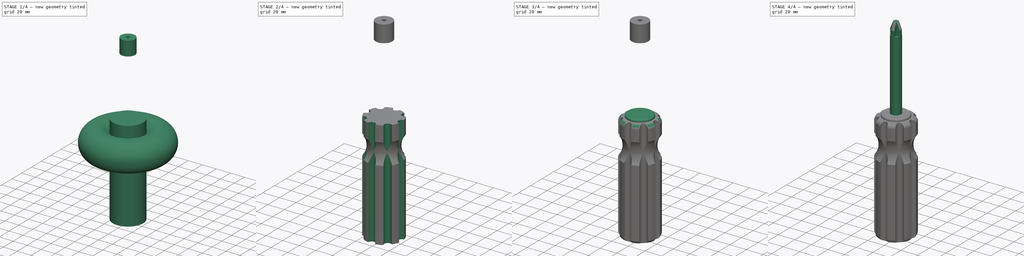
[diagram: build sequence overview — one tinted view per stage of 4, left to right]
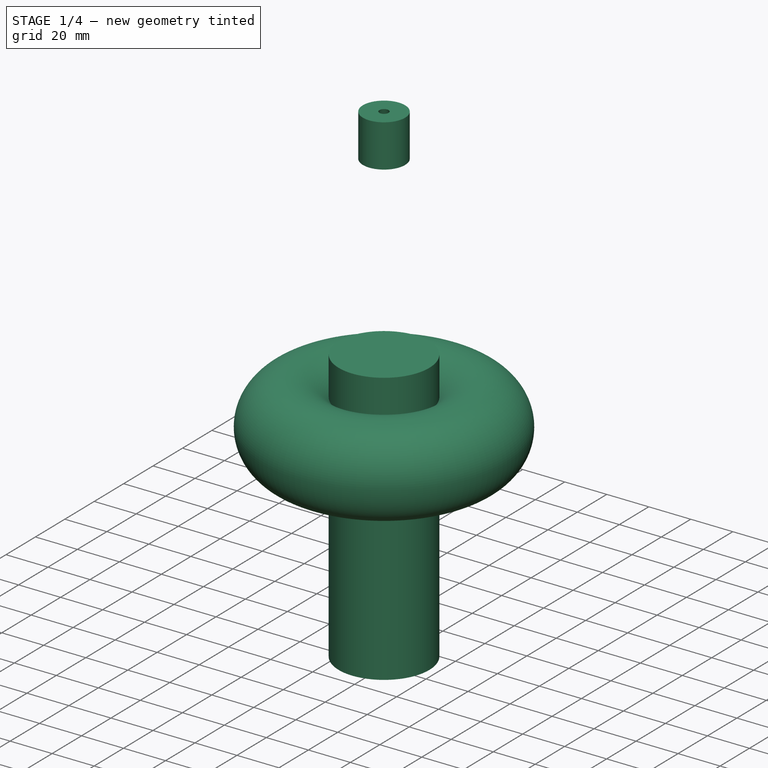
[diagram: stage 1 of 4 — iso view after this stage's code; geometry added in this stage tinted green]
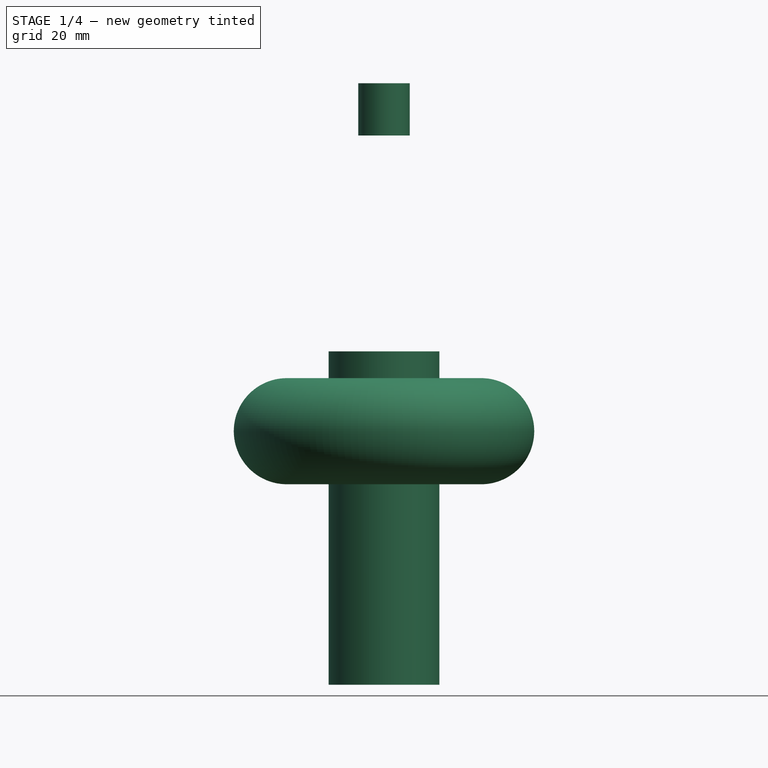
[diagram: stage 1 of 4 — front view after this stage's code; geometry added in this stage tinted green]
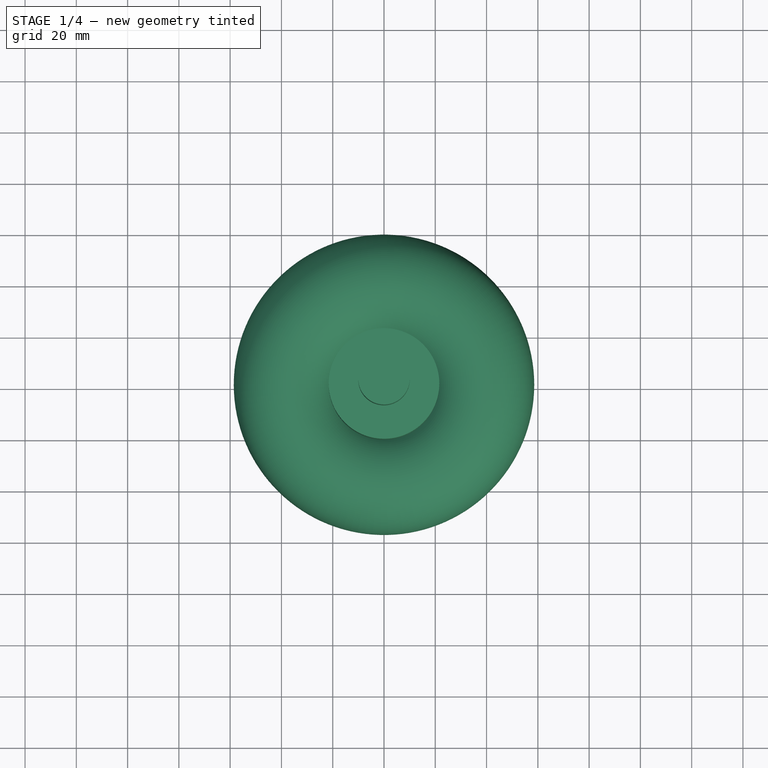
[diagram: stage 1 of 4 — top view after this stage's code; geometry added in this stage tinted green]
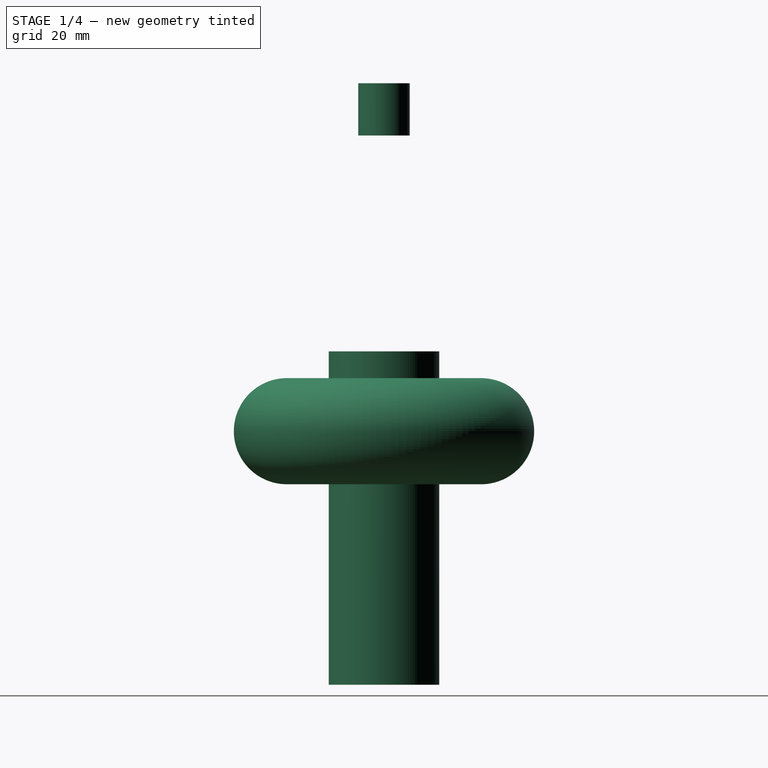
[diagram: stage 1 of 4 — right view after this stage's code; geometry added in this stage tinted green]
FCSTD DOCUMENT  (FreeCAD 0.16R)
Label: destornillador
License: All rights reserved
LicenseURL: http://en.wikipedia.org/wiki/All_rights_reserved
objects: Sketcher::SketchObject×7, PartDesign::Pad×3, PartDesign::Fillet×3, PartDesign::Revolution×2, Part::Cut×2, PartDesign::Pocket×2, PartDesign::PolarPattern×1
note: 27 computed .brp shape members not serialized (recipe doc carries the construction recipe); baked Part::Feature solids carry a one-line shape summary decoded from their .brp

FEATURE [Sketcher::SketchObject] Sketch
  sketch-geometry (1):
    g0: Circle CenterX=0 CenterY=0 CenterZ=0 NormalX=0 NormalY=0 NormalZ=1 Radius=21.5785
  constraints (1):
    c: Coincident(g0,g-1)
FEATURE [PartDesign::Pad] Pad
  Length = 130
  Length2 = 100
  Midplane = true
  Sketch = -> Sketch
  Type = 0
FEATURE [Sketcher::SketchObject] Sketch001
  Placement = pos=(0,0,0) rot=(-1,0,0;4.71239rad)
  sketch-geometry (1):
    g0: Circle CenterX=37.892 CenterY=33.868 CenterZ=0 NormalX=0 NormalY=0 NormalZ=1 Radius=20.6954
FEATURE [PartDesign::Revolution] Revolution
  Angle = 360
  Axis = (0,0,1)
  Base = (0,0,0)
  Placement = pos=(0,0,0) rot=(-1,0,0;4.71239rad)
  ReferenceAxis = -> Sketch001 [V_Axis]
  Reversed = true
  Sketch = -> Sketch001
FEATURE [Sketcher::SketchObject] Sketch006
  Placement = pos=(0,0,0) rot=(-1,0,0;4.71239rad)
  sketch-geometry (3):
    g0: LineSegment StartX=2.2004 StartY=169.554 StartZ=0 EndX=10.0354 EndY=149.213 EndZ=0
    g1: LineSegment StartX=10.0354 StartY=149.213 StartZ=0 EndX=10.0354 EndY=169.554 EndZ=0
    g2: LineSegment StartX=10.0354 StartY=169.554 StartZ=0 EndX=2.2004 EndY=169.554 EndZ=0
  constraints (5):
    c: Coincident(g0,g1)
    c: Vertical(g1)
    c: Coincident(g1,g2)
    c: Coincident(g2,g0)
    c: Horizontal(g2)
FEATURE [PartDesign::Revolution] Revolution001
  Angle = 360
  Axis = (0,0,1)
  Base = (0,0,0)
  Placement = pos=(0,0,0) rot=(-1,0,0;4.71239rad)
  ReferenceAxis = -> Sketch006 [V_Axis]
  Reversed = true
  Sketch = -> Sketch006
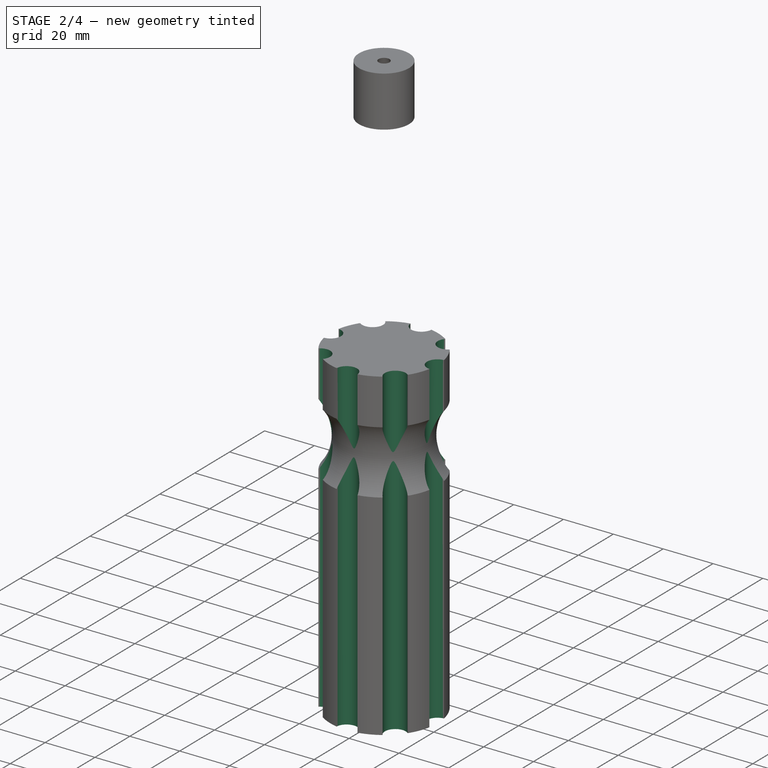
[diagram: stage 2 of 4 — iso view after this stage's code; geometry added in this stage tinted green]
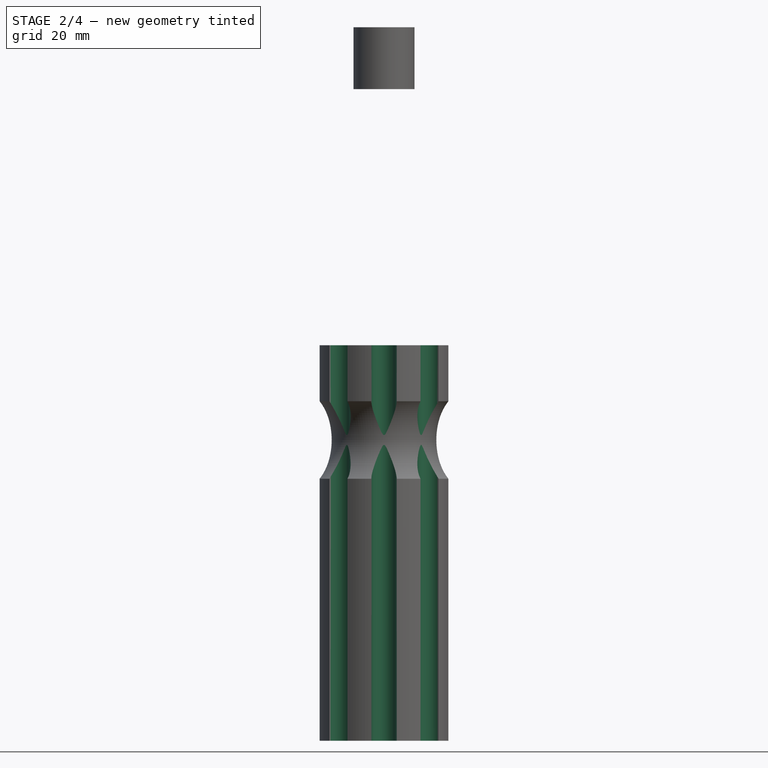
[diagram: stage 2 of 4 — front view after this stage's code; geometry added in this stage tinted green]
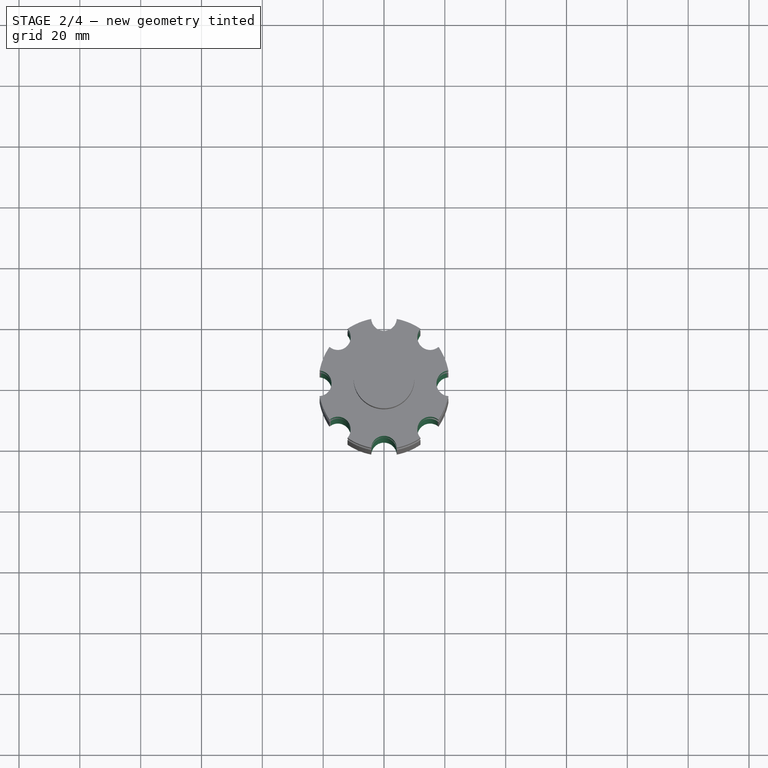
[diagram: stage 2 of 4 — top view after this stage's code; geometry added in this stage tinted green]
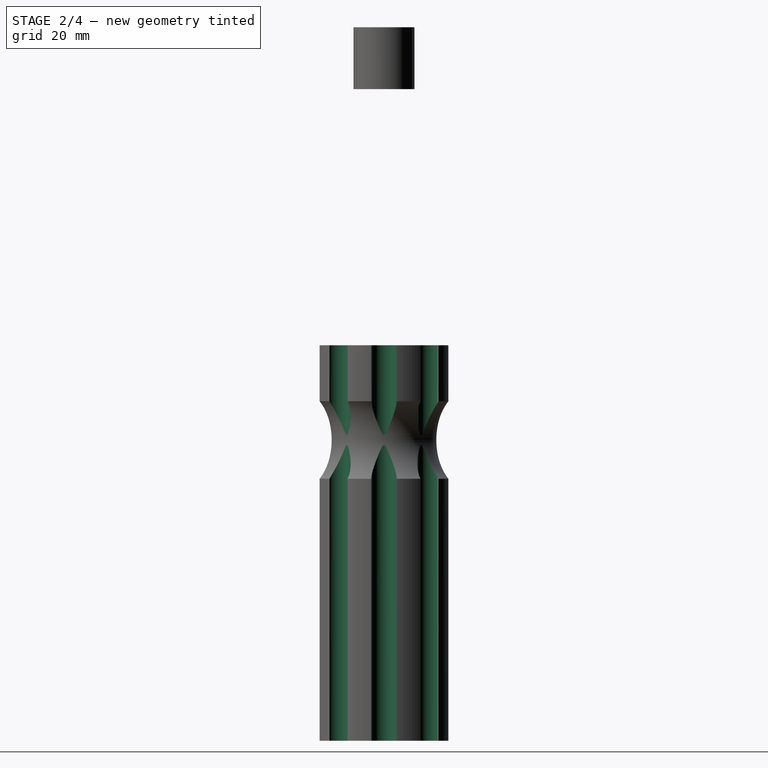
[diagram: stage 2 of 4 — right view after this stage's code; geometry added in this stage tinted green]
FEATURE [Part::Cut] Cut
  Base = -> Pad
  Tool = -> Revolution
FEATURE [Sketcher::SketchObject] Sketch002
  Placement = pos=(0,0,65) rot=(0,0,1;0rad)
  Support = -> Cut [Face5]
  sketch-geometry (1):
    g0: Circle CenterX=-3e-06 CenterY=21.4609 CenterZ=0 NormalX=0 NormalY=0 NormalZ=1 Radius=4.20165
FEATURE [PartDesign::Pocket] Pocket
  Length = 5
  Sketch = -> Sketch002
  Type = 1
FEATURE [PartDesign::PolarPattern] PolarPattern
  Angle = 360
  Axis = -> Sketch002 [N_Axis]
  Occurrences = 8
  Originals = -> [Pocket]
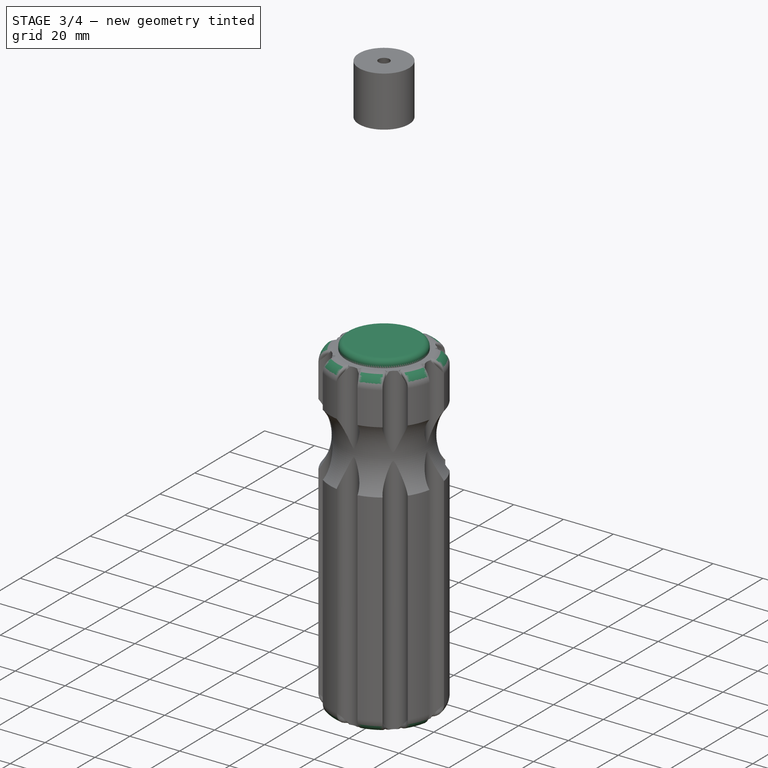
[diagram: stage 3 of 4 — iso view after this stage's code; geometry added in this stage tinted green]
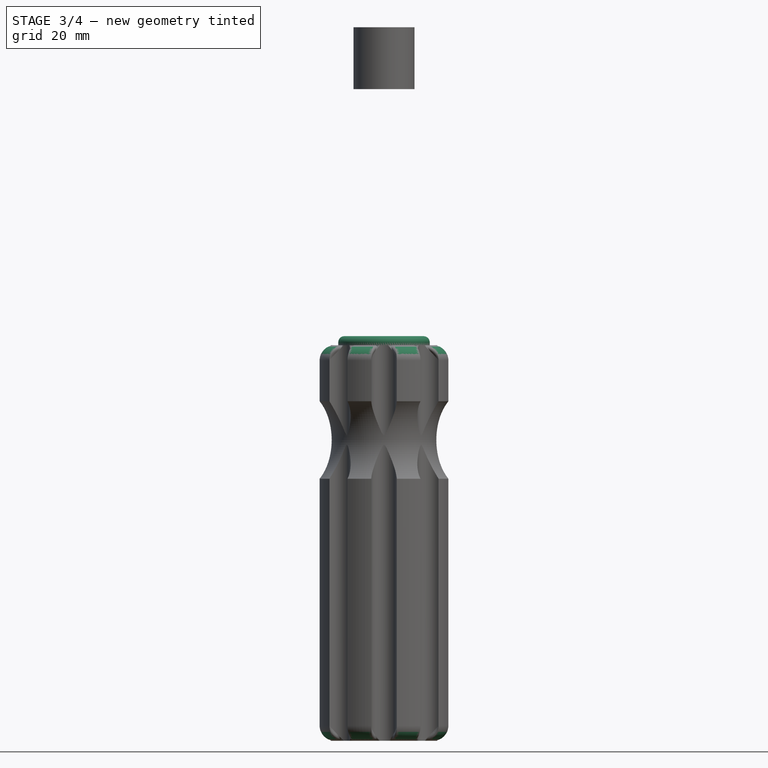
[diagram: stage 3 of 4 — front view after this stage's code; geometry added in this stage tinted green]
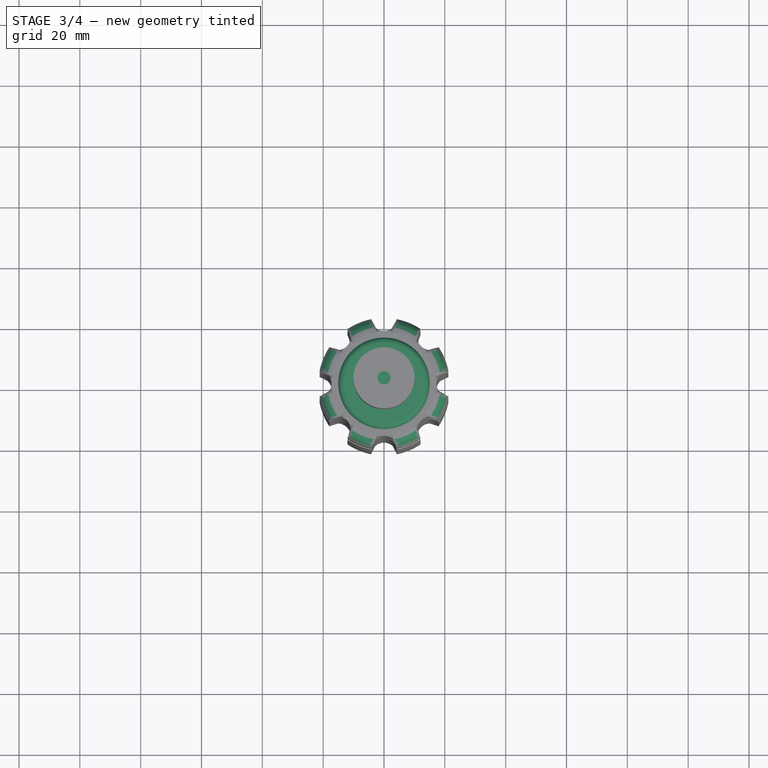
[diagram: stage 3 of 4 — top view after this stage's code; geometry added in this stage tinted green]
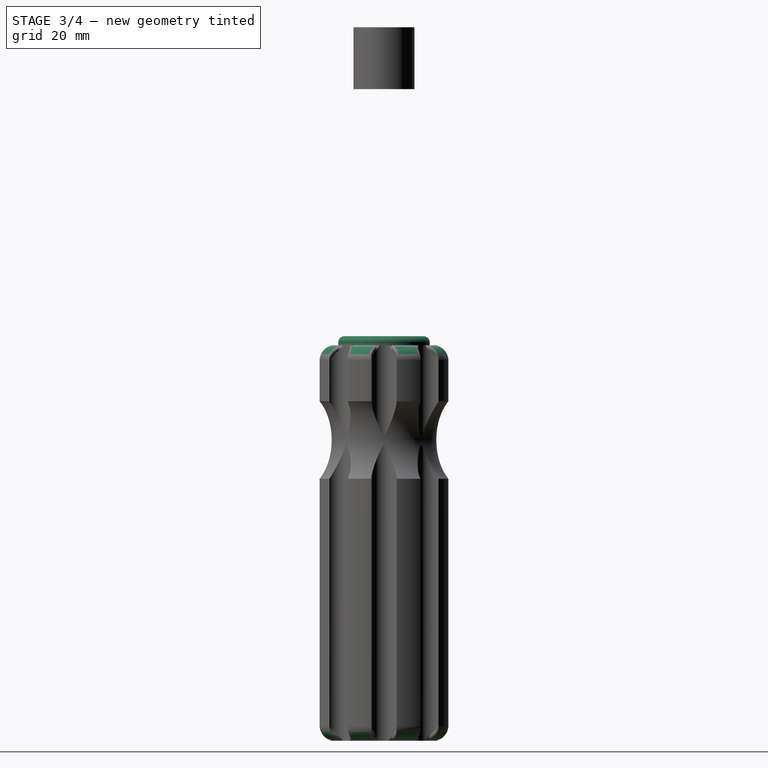
[diagram: stage 3 of 4 — right view after this stage's code; geometry added in this stage tinted green]
FEATURE [Sketcher::SketchObject] Sketch003
  Placement = pos=(0,0,65) rot=(0,0,1;0rad)
  Support = -> PolarPattern [Face34]
  sketch-geometry (1):
    g0: Circle CenterX=0 CenterY=0 CenterZ=0 NormalX=0 NormalY=0 NormalZ=1 Radius=15.03
  constraints (1):
    c: Coincident(g0,g-1)
FEATURE [PartDesign::Pad] Pad001
  Length = 3
  Length2 = 100
  Sketch = -> Sketch003
  Type = 0
FEATURE [PartDesign::Fillet] Fillet
  Base = -> Pad001 [Edge1]
  Radius = 3
FEATURE [PartDesign::Fillet] Fillet001
  Base = -> Fillet [Edge13,Edge9,Edge6,Edge10,Edge14,Edge18,Edge21,Edge17]
  Radius = 5
FEATURE [PartDesign::Fillet] Fillet002
  Base = -> Fillet001 [Edge157,Edge153,Edge149,Edge145,Edge141,Edge137,Edge133,Edge160]
  Radius = 5
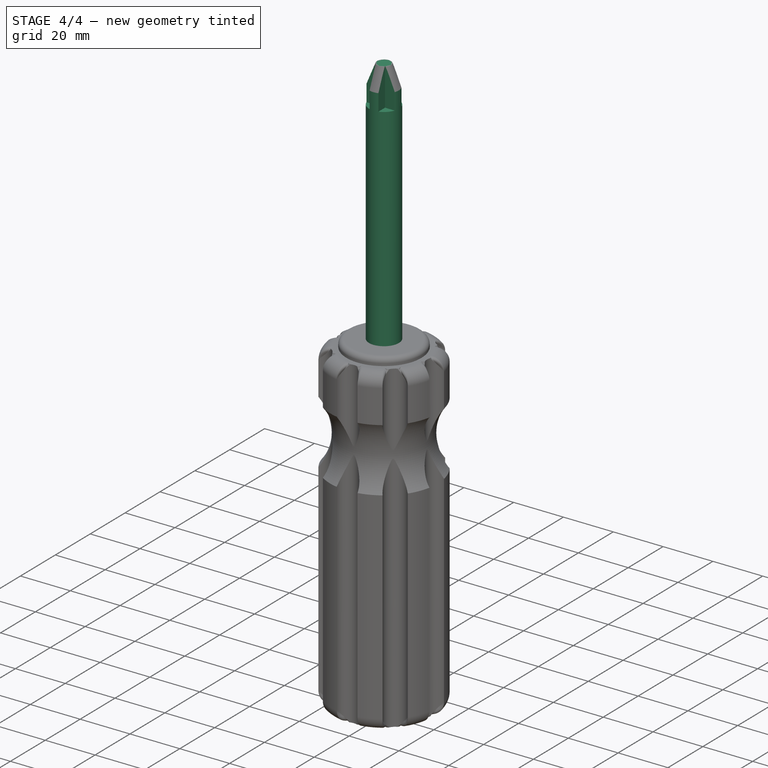
[diagram: stage 4 of 4 — iso view after this stage's code; geometry added in this stage tinted green]
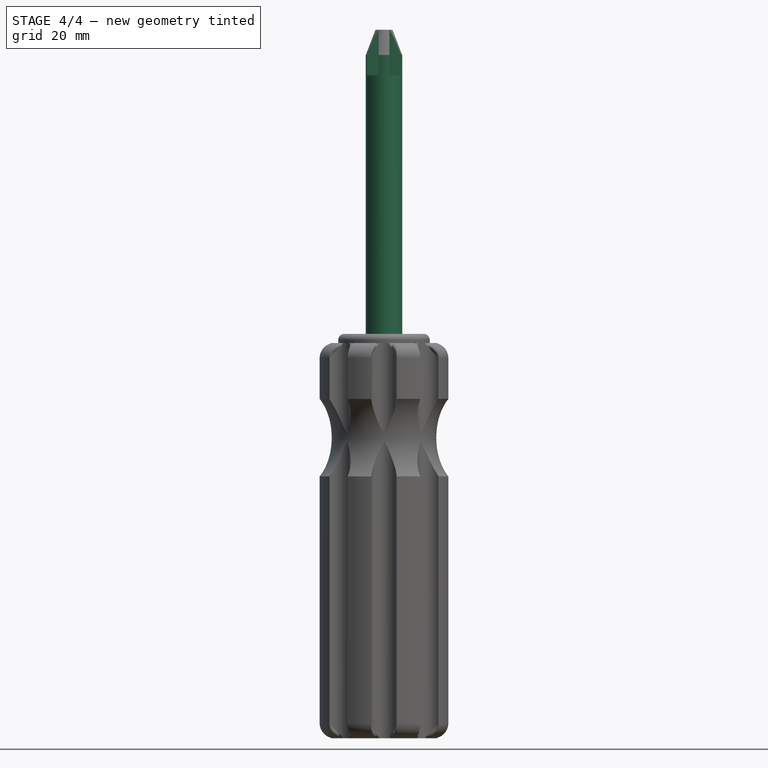
[diagram: stage 4 of 4 — front view after this stage's code; geometry added in this stage tinted green]
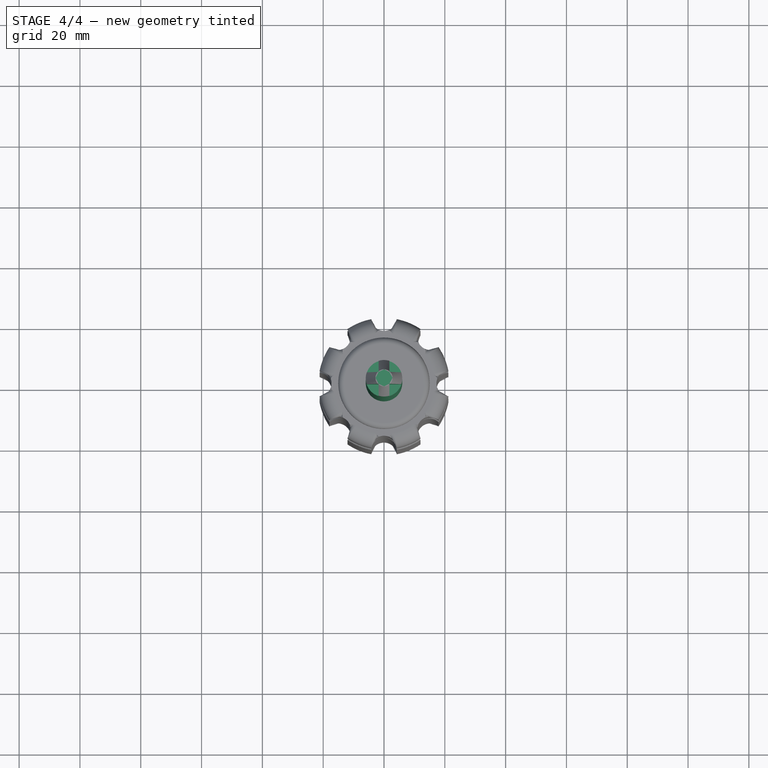
[diagram: stage 4 of 4 — top view after this stage's code; geometry added in this stage tinted green]
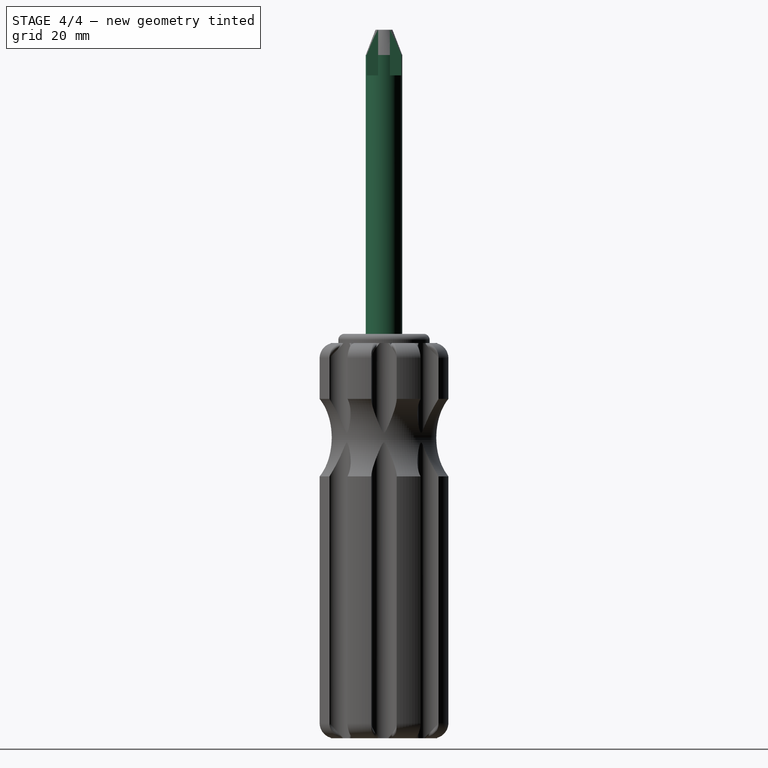
[diagram: stage 4 of 4 — right view after this stage's code; geometry added in this stage tinted green]
FEATURE [Sketcher::SketchObject] Sketch004
  Placement = pos=(0,0,68) rot=(0,0,1;0rad)
  Support = -> Fillet002 [Face86]
  sketch-geometry (1):
    g0: Circle CenterX=0 CenterY=0 CenterZ=0 NormalX=0 NormalY=0 NormalZ=1 Radius=6
  constraints (2):
    c: Coincident(g0,g-1)
    c: Radius(g0) = 6
FEATURE [PartDesign::Pad] Pad002
  Length = 100
  Length2 = 100
  Sketch = -> Sketch004
  Type = 0
FEATURE [Sketcher::SketchObject] Sketch005
  Placement = pos=(0,0,168) rot=(0,0,1;0rad)
  Support = -> Pad002 [Face1]
  sketch-geometry (16):
    g0: LineSegment StartX=1.77679 StartY=-1.94756 StartZ=0 EndX=7.62098 EndY=-1.94756 EndZ=0
    g1: LineSegment StartX=7.62098 StartY=-1.94756 StartZ=0 EndX=7.62098 EndY=-8.01653 EndZ=0
    g2: LineSegment StartX=7.62098 StartY=-8.01653 StartZ=0 EndX=1.77679 EndY=-8.01653 EndZ=0
    g3: LineSegment StartX=1.77679 StartY=-8.01653 StartZ=0 EndX=1.77679 EndY=-1.94756 EndZ=0
    g4: LineSegment StartX=1.77679 StartY=1.94756 StartZ=0 EndX=7.62098 EndY=1.94756 EndZ=0
    g5: LineSegment StartX=7.62098 StartY=1.94756 StartZ=0 EndX=7.62098 EndY=8.01653 EndZ=0
    g6: LineSegment StartX=7.62098 StartY=8.01653 StartZ=0 EndX=1.77679 EndY=8.01653 EndZ=0
    g7: LineSegment StartX=1.77679 StartY=8.01653 StartZ=0 EndX=1.77679 EndY=1.94756 EndZ=0
    g8: LineSegment StartX=-1.77679 StartY=-1.94756 StartZ=0 EndX=-7.62098 EndY=-1.94756 EndZ=0
    g9: LineSegment StartX=-7.62098 StartY=-1.94756 StartZ=0 EndX=-7.62098 EndY=-8.01653 EndZ=0
    g10: LineSegment StartX=-7.62098 StartY=-8.01653 StartZ=0 EndX=-1.77679 EndY=-8.01653 EndZ=0
    g11: LineSegment StartX=-1.77679 StartY=-8.01653 StartZ=0 EndX=-1.77679 EndY=-1.94756 EndZ=0
    g12: LineSegment StartX=-1.77679 StartY=1.94756 StartZ=0 EndX=-7.62098 EndY=1.94756 EndZ=0
    g13: LineSegment StartX=-7.62098 StartY=1.94756 StartZ=0 EndX=-7.62098 EndY=8.01653 EndZ=0
    g14: LineSegment StartX=-7.62098 StartY=8.01653 StartZ=0 EndX=-1.77679 EndY=8.01653 EndZ=0
    g15: LineSegment StartX=-1.77679 StartY=8.01653 StartZ=0 EndX=-1.77679 EndY=1.94756 EndZ=0
  constraints (32):
    c: Coincident(g0,g1)
    c: Coincident(g1,g2)
    c: Coincident(g2,g3)
    c: Coincident(g3,g0)
    c: Horizontal(g0)
    c: Horizontal(g2)
    c: Vertical(g1)
    c: Vertical(g3)
    c: Coincident(g4,g5)
    c: Coincident(g5,g6)
    c: Coincident(g6,g7)
    c: Coincident(g7,g4)
    c: Horizontal(g4)
    c: Horizontal(g6)
    c: Vertical(g5)
    c: Vertical(g7)
    c: Coincident(g8,g9)
    c: Coincident(g9,g10)
    c: Coincident(g10,g11)
    c: Coincident(g11,g8)
    c: Horizontal(g8)
    c: Horizontal(g10)
    c: Vertical(g9)
    c: Vertical(g11)
    c: Coincident(g12,g13)
    c: Coincident(g13,g14)
    c: Coincident(g14,g15)
    c: Coincident(g15,g12)
    c: Horizontal(g12)
    c: Horizontal(g14)
    c: Vertical(g13)
    c: Vertical(g15)
FEATURE [PartDesign::Pocket] Pocket001
  Length = 15
  Sketch = -> Sketch005
  Type = 0
FEATURE [Part::Cut] Cut001
  Base = -> Pocket001
  Tool = -> Revolution001
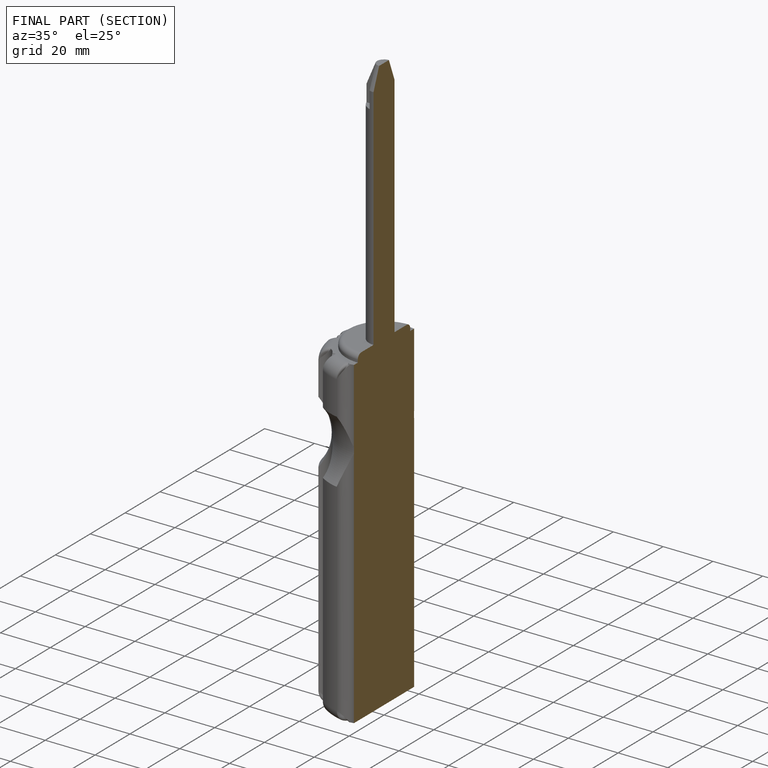
[diagram: finished part — half-section view (interior)]
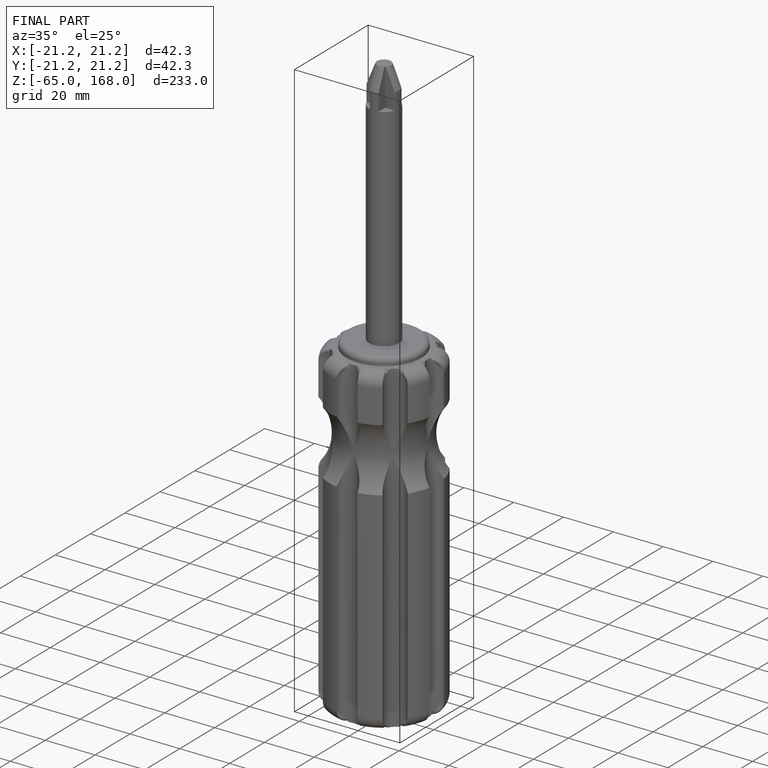
[diagram: finished part — iso view with bounding-box wireframe]
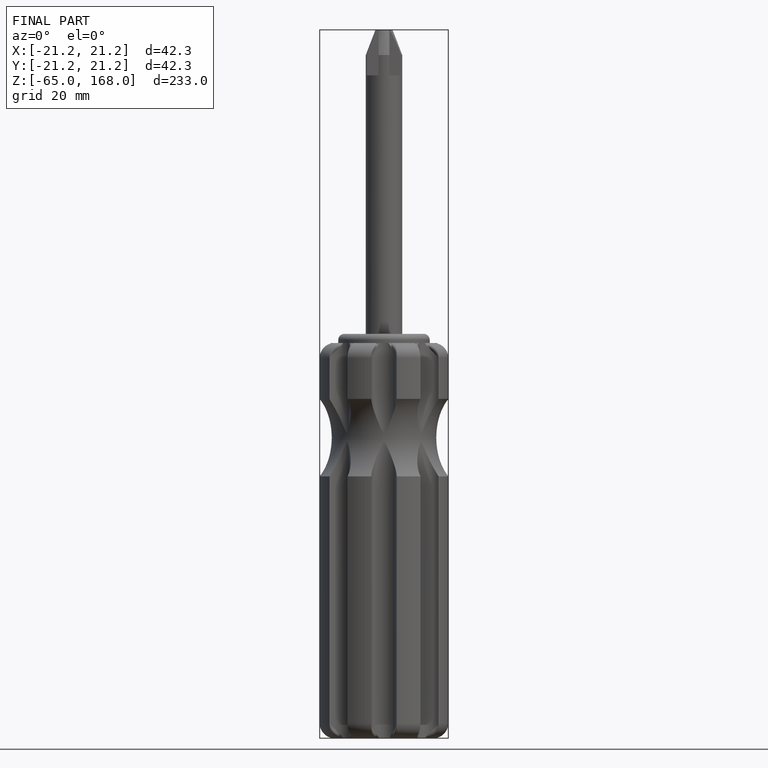
[diagram: finished part — front view with bounding-box wireframe]
